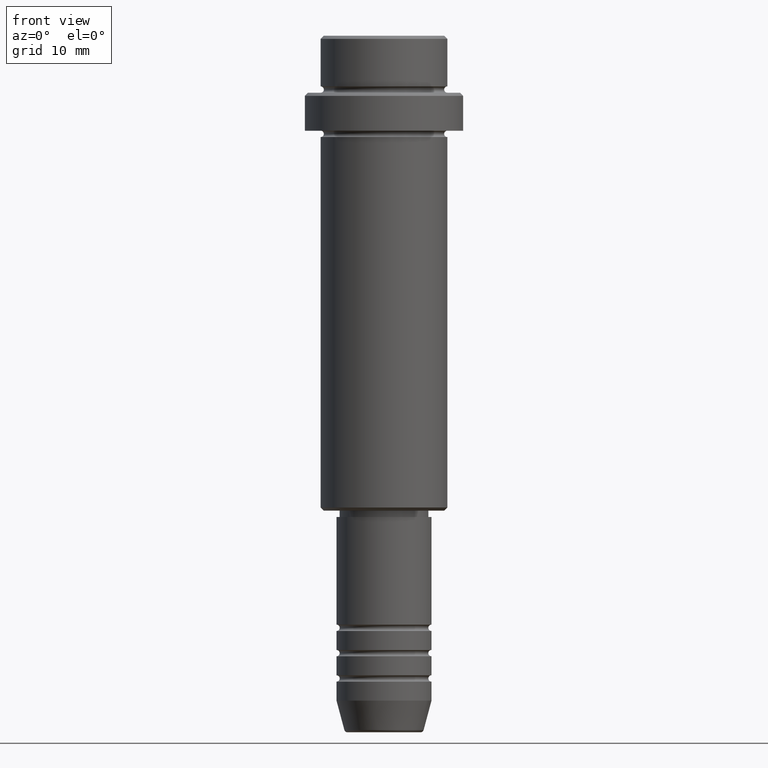
[diagram: clean part render]
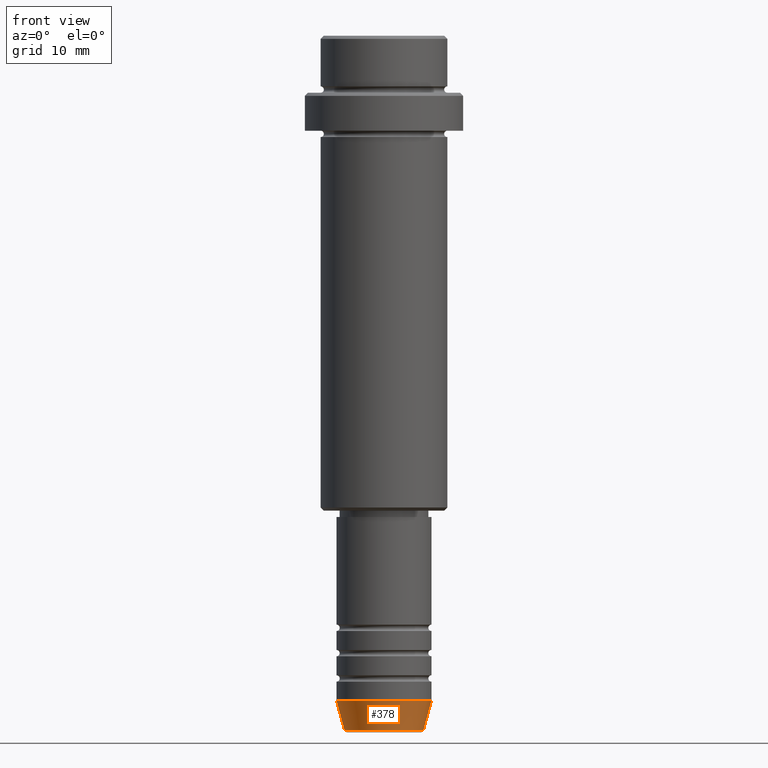
[diagram: same view with one face highlighted and labeled with its STEP entity id]
A machine part, front view. The second image highlights one B-rep face of the part: STEP entity #378.
In plain terms, the highlighted conical surface has half-angle 15 deg.
Its self-contained STEP definition (entity closure, byte-faithful):
#21 = FACE_OUTER_BOUND ( 'NONE', #590, .T. ) ;
#50 = ORIENTED_EDGE ( 'NONE', *, *, #165, .T. ) ;
#52 = ORIENTED_EDGE ( 'NONE', *, *, #978, .T. ) ;
#165 = EDGE_CURVE ( 'NONE', #350, #428, #635, .T. ) ;
#244 = EDGE_CURVE ( 'NONE', #269, #1228, #856, .T. ) ;
#269 = VERTEX_POINT ( 'NONE', #1077 ) ;
#350 = VERTEX_POINT ( 'NONE', #361 ) ;
#361 = CARTESIAN_POINT ( 'NONE',  ( 6.259553456999438659, 0.000000000000000000, -109.6294095225512706 ) ) ;
#377 = DIRECTION ( 'NONE',  ( -0.000000000000000000, -0.000000000000000000, 1.000000000000000000 ) ) ;
#378 = ADVANCED_FACE ( 'NONE', ( #21 ), #990, .T. ) ;
#428 = VERTEX_POINT ( 'NONE', #501 ) ;
#496 = CARTESIAN_POINT ( 'NONE',  ( 0.000000000000000000, 0.000000000000000000, -105.0000000000000142 ) ) ;
#501 = CARTESIAN_POINT ( 'NONE',  ( 7.500000000000000000, 0.000000000000000000, -105.0000000000000142 ) ) ;
#540 = CARTESIAN_POINT ( 'NONE',  ( -7.500000000000000000, 9.184850993605147944E-16, -105.0000000000000142 ) ) ;
#549 = CARTESIAN_POINT ( 'NONE',  ( 7.500000000000000000, 0.000000000000000000, -105.0000000000000142 ) ) ;
#570 = EDGE_CURVE ( 'NONE', #1228, #428, #794, .T. ) ;
#590 = EDGE_LOOP ( 'NONE', ( #1366, #52, #50, #902 ) ) ;
#635 = LINE ( 'NONE', #549, #722 ) ;
#722 = VECTOR ( 'NONE', #1071, 1000.000000000000000 ) ;
#769 = AXIS2_PLACEMENT_3D ( 'NONE', #496, #377, #1262 ) ;
#792 = CARTESIAN_POINT ( 'NONE',  ( -7.500000000000000000, 9.184850993605147944E-16, -105.0000000000000142 ) ) ;
#794 = CIRCLE ( 'NONE', #769, 7.500000000000000000 ) ;
#822 = DIRECTION ( 'NONE',  ( 1.000000000000000000, 0.000000000000000000, 0.000000000000000000 ) ) ;
#856 = LINE ( 'NONE', #540, #1151 ) ;
#894 = CARTESIAN_POINT ( 'NONE',  ( 0.000000000000000000, 0.000000000000000000, -105.0000000000000142 ) ) ;
#902 = ORIENTED_EDGE ( 'NONE', *, *, #570, .F. ) ;
#924 = CARTESIAN_POINT ( 'NONE',  ( 0.000000000000000000, 0.000000000000000000, -109.6294095225512706 ) ) ;
#978 = EDGE_CURVE ( 'NONE', #269, #350, #1231, .T. ) ;
#981 = DIRECTION ( 'NONE',  ( -0.2588190451025213501, 3.169619151431772337E-17, 0.9659258262890680902 ) ) ;
#990 = CONICAL_SURFACE ( 'NONE', #1131, 7.500000000000000000, 0.2617993877991500740 ) ;
#1032 = DIRECTION ( 'NONE',  ( -0.000000000000000000, -0.000000000000000000, 1.000000000000000000 ) ) ;
#1071 = DIRECTION ( 'NONE',  ( 0.2588190451025213501, 0.000000000000000000, 0.9659258262890680902 ) ) ;
#1077 = CARTESIAN_POINT ( 'NONE',  ( -6.259553456999439547, 8.425296549405630472E-16, -109.6294095225512706 ) ) ;
#1131 = AXIS2_PLACEMENT_3D ( 'NONE', #894, #1335, #1225 ) ;
#1151 = VECTOR ( 'NONE', #981, 1000.000000000000000 ) ;
#1225 = DIRECTION ( 'NONE',  ( 1.000000000000000000, 0.000000000000000000, 0.000000000000000000 ) ) ;
#1228 = VERTEX_POINT ( 'NONE', #792 ) ;
#1231 = CIRCLE ( 'NONE', #1386, 6.259553456999438659 ) ;
#1262 = DIRECTION ( 'NONE',  ( 1.000000000000000000, 0.000000000000000000, 0.000000000000000000 ) ) ;
#1335 = DIRECTION ( 'NONE',  ( -0.000000000000000000, -0.000000000000000000, 1.000000000000000000 ) ) ;
#1366 = ORIENTED_EDGE ( 'NONE', *, *, #244, .F. ) ;
#1386 = AXIS2_PLACEMENT_3D ( 'NONE', #924, #1032, #822 ) ;